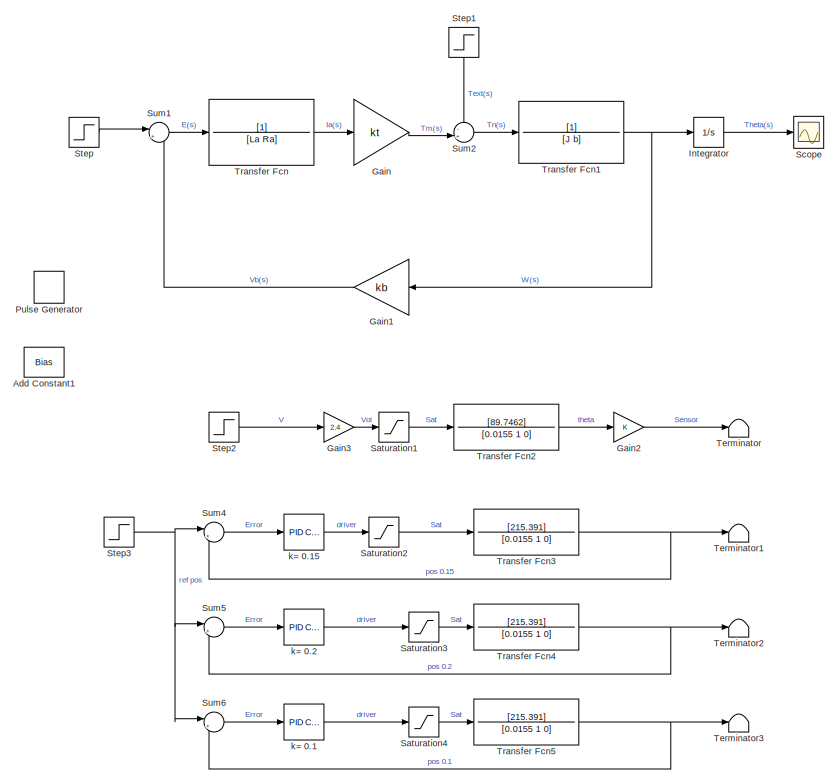
[diagram: root canvas - part 1/2, top left region]
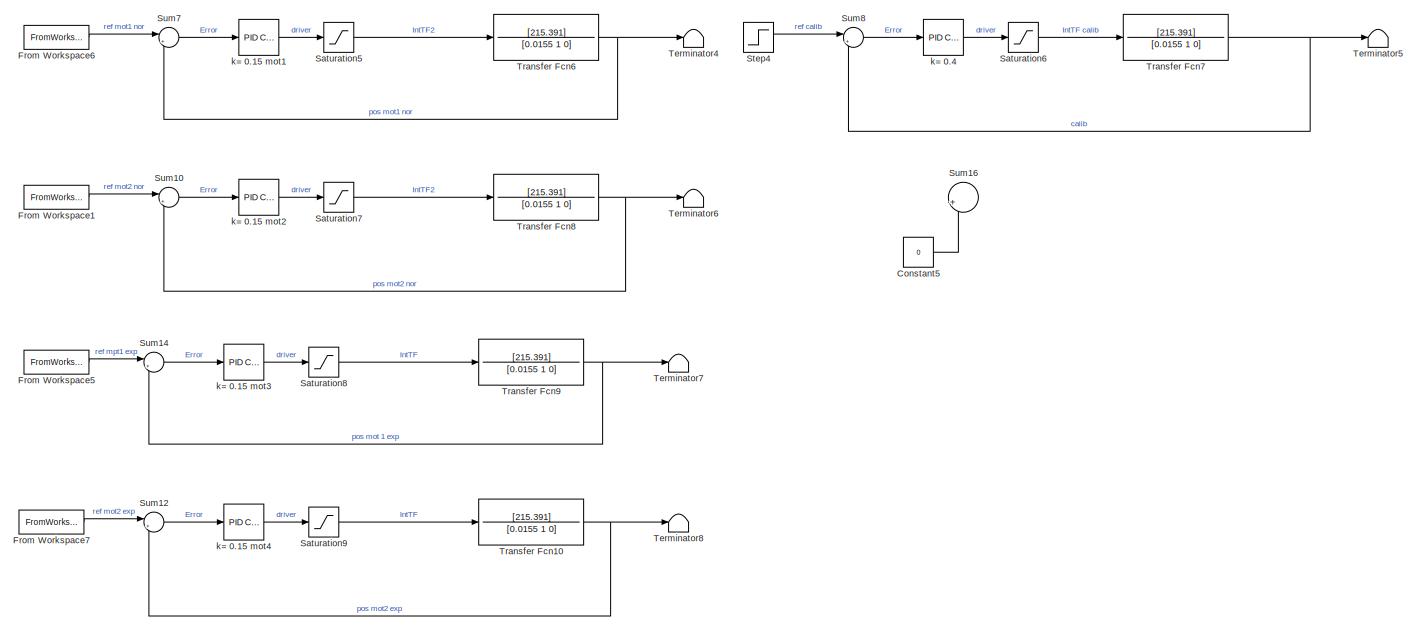
[diagram: root canvas - part 2/2, full width, bottom band]
MODEL slx_a21ca1949659
KIND model
CONFIG AbsTol = auto
CONFIG EnableMultiTasking = off
CONFIG FixedStep = auto
CONFIG MaxStep = auto
CONFIG MinStep = auto
CONFIG RelTol = 1e-3
CONFIG SampleTimeConstraint = Unconstrained
CONFIG SolverName = VariableStepAuto
CONFIG StartTime = 0.0
CONFIG StopTime = 11.5
BLOCK [Bias] Add Constant1
  Bias = -10
  Commented = on
  SaturateOnIntegerOverflow = off
BLOCK [Constant] Constant5
  Commented = on
  Value = 0
BLOCK [FromWorkspace] From Workspace1
  Commented = on
  OutputAfterFinalValue = Setting to zero
  VariableName = Treb_norm2
BLOCK [FromWorkspace] From Workspace5
  Commented = on
  OutputAfterFinalValue = Setting to zero
  VariableName = Treb_expa1
BLOCK [FromWorkspace] From Workspace6
  OutputAfterFinalValue = Setting to zero
  VariableName = Treb_norm1
BLOCK [FromWorkspace] From Workspace7
  Commented = on
  OutputAfterFinalValue = Setting to zero
  VariableName = Treb_expa2
BLOCK [Gain] Gain
  Commented = on
  Gain = kt
BLOCK [Gain] Gain1
  Commented = on
  Gain = kb
  NameLocation = top
BLOCK [Gain] Gain2
BLOCK [Gain] Gain3
  Gain = 2.4
BLOCK [Integrator] Integrator
  Commented = on
  Ports = [1, 1]
BLOCK [DiscretePulseGenerator] Pulse Generator
  Amplitude = 40
  Commented = on
  Period = 0.6
  Ports = [0, 1]
  PulseType = Time based
  PulseWidth = 50
BLOCK [Saturate] Saturation1
  LowerLimit = 0
  UpperLimit = 12
BLOCK [Saturate] Saturation2
  Commented = on
  LowerLimit = -5
  UpperLimit = 5
BLOCK [Saturate] Saturation3
  Commented = on
  LowerLimit = -5
  UpperLimit = 5
BLOCK [Saturate] Saturation4
  Commented = on
  LowerLimit = -5
  UpperLimit = 5
BLOCK [Saturate] Saturation5
  LowerLimit = -5
  UpperLimit = 5
BLOCK [Saturate] Saturation6
  Commented = on
  LowerLimit = -5
  UpperLimit = 5
BLOCK [Saturate] Saturation7
  Commented = on
  LowerLimit = -5
  UpperLimit = 5
BLOCK [Saturate] Saturation8
  Commented = on
  LowerLimit = -5
  UpperLimit = 5
BLOCK [Saturate] Saturation9
  Commented = on
  LowerLimit = -5
  UpperLimit = 5
BLOCK [Scope] Scope
  Commented = on
  Floating = off
  NumInputPorts = 1
  Ports = [1]
  ScopeSpecificationString = Simulink.scopes.TimeScopeBlockCfg('CurrentConfiguration', extmgr.ConfigurationSet(extmgr.Configuration('Core','General UI',true),extmgr.Configuration('Core','Source UI',true),extmgr.Configuration('Sources','WiredSimulink',true),extmgr.Configuration('Visuals','Time Domain',true,'SerializedDisplays',{struct('MinYLimReal','-65.22706','MaxYLimReal','587.04358','YLabelReal','','MinYLimMag','0.00000','M...<+1370ch>
BLOCK [Step] Step
  After = 12
  Commented = on
  SampleTime = 0
  Time = 0
BLOCK [Step] Step1
  After = 0
  Commented = on
  NameLocation = left
  SampleTime = 0
  Time = 0
BLOCK [Step] Step2
  After = 5
  SampleTime = 0
  Time = 0
BLOCK [Step] Step3
  After = 1.57
  Commented = on
  SampleTime = 0
  Time = 0
BLOCK [Step] Step4
  After = 0.7854
  Commented = on
  SampleTime = 0
  Time = 0
BLOCK [Sum] Sum1
  Commented = on
  Inputs = |+-
  Ports = [2, 1]
BLOCK [Sum] Sum10
  Commented = on
  Inputs = |+-
  Ports = [2, 1]
BLOCK [Sum] Sum12
  Commented = on
  Inputs = |+-
  Ports = [2, 1]
BLOCK [Sum] Sum14
  Commented = on
  Inputs = |+-
  Ports = [2, 1]
BLOCK [Sum] Sum16
  Commented = on
  Inputs = |++
  Ports = [2, 1]
BLOCK [Sum] Sum2
  Commented = on
  Inputs = -+|
  Ports = [2, 1]
BLOCK [Sum] Sum4
  Commented = on
  Inputs = |+-
  Ports = [2, 1]
BLOCK [Sum] Sum5
  Commented = on
  Inputs = |+-
  Ports = [2, 1]
BLOCK [Sum] Sum6
  Commented = on
  Inputs = |+-
  Ports = [2, 1]
BLOCK [Sum] Sum7
  Inputs = |+-
  Ports = [2, 1]
BLOCK [Sum] Sum8
  Commented = on
  Inputs = |+-
  Ports = [2, 1]
BLOCK [Terminator] Terminator
BLOCK [Terminator] Terminator1
  Commented = on
BLOCK [Terminator] Terminator2
  Commented = on
BLOCK [Terminator] Terminator3
  Commented = on
BLOCK [Terminator] Terminator4
BLOCK [Terminator] Terminator5
  Commented = on
BLOCK [Terminator] Terminator6
  Commented = on
BLOCK [Terminator] Terminator7
  Commented = on
BLOCK [Terminator] Terminator8
  Commented = on
BLOCK [TransferFcn] Transfer Fcn
  Commented = on
  Denominator = [La Ra]
BLOCK [TransferFcn] Transfer Fcn1
  Commented = on
  Denominator = [J b]
BLOCK [TransferFcn] Transfer Fcn10
  Commented = on
  Denominator = [0.0155 1 0]
  Numerator = [215.391]
BLOCK [TransferFcn] Transfer Fcn2
  Denominator = [0.0155 1 0]
  Numerator = [89.7462]
BLOCK [TransferFcn] Transfer Fcn3
  Commented = on
  Denominator = [0.0155 1 0]
  Numerator = [215.391]
BLOCK [TransferFcn] Transfer Fcn4
  Commented = on
  Denominator = [0.0155 1 0]
  Numerator = [215.391]
BLOCK [TransferFcn] Transfer Fcn5
  Commented = on
  Denominator = [0.0155 1 0]
  Numerator = [215.391]
BLOCK [TransferFcn] Transfer Fcn6
  Denominator = [0.0155 1 0]
  Numerator = [215.391]
BLOCK [TransferFcn] Transfer Fcn7
  Commented = on
  Denominator = [0.0155 1 0]
  Numerator = [215.391]
BLOCK [TransferFcn] Transfer Fcn8
  Commented = on
  Denominator = [0.0155 1 0]
  Numerator = [215.391]
BLOCK [TransferFcn] Transfer Fcn9
  Commented = on
  Denominator = [0.0155 1 0]
  Numerator = [215.391]
BLOCK [Reference] k= 0.1  REF=pid_lib/PID Controller
  Commented = on
  Ports = [1, 1]
  SourceBlock = pid_lib/PID Controller
  SourceProductBaseCode = SL
  SourceType = PID 1dof
BLOCK [Reference] k= 0.15  REF=pid_lib/PID Controller
  Commented = on
  Ports = [1, 1]
  SourceBlock = pid_lib/PID Controller
  SourceProductBaseCode = SL
  SourceType = PID 1dof
BLOCK [Reference] k= 0.15 mot1  REF=pid_lib/PID Controller
  Ports = [1, 1]
  SourceBlock = pid_lib/PID Controller
  SourceProductBaseCode = SL
  SourceType = PID 1dof
BLOCK [Reference] k= 0.15 mot2  REF=pid_lib/PID Controller
  Commented = on
  Ports = [1, 1]
  SourceBlock = pid_lib/PID Controller
  SourceProductBaseCode = SL
  SourceType = PID 1dof
BLOCK [Reference] k= 0.15 mot3  REF=pid_lib/PID Controller
  Commented = on
  Ports = [1, 1]
  SourceBlock = pid_lib/PID Controller
  SourceProductBaseCode = SL
  SourceType = PID 1dof
BLOCK [Reference] k= 0.15 mot4  REF=pid_lib/PID Controller
  Commented = on
  Ports = [1, 1]
  SourceBlock = pid_lib/PID Controller
  SourceProductBaseCode = SL
  SourceType = PID 1dof
BLOCK [Reference] k= 0.2  REF=pid_lib/PID Controller
  Commented = on
  Ports = [1, 1]
  SourceBlock = pid_lib/PID Controller
  SourceProductBaseCode = SL
  SourceType = PID 1dof
BLOCK [Reference] k= 0.4  REF=pid_lib/PID Controller
  Commented = on
  Ports = [1, 1]
  SourceBlock = pid_lib/PID Controller
  SourceProductBaseCode = SL
  SourceType = PID 1dof
LINE Constant5:1 -> Sum16:2
LINE From Workspace1:1 -> Sum10:1
LINE From Workspace5:1 -> Sum14:1
LINE From Workspace6:1 -> Sum7:1
LINE From Workspace7:1 -> Sum12:1
LINE Gain1:1 -> Sum1:2
LINE Gain2:1 -> Terminator:1
LINE Gain3:1 -> Saturation1:1
LINE Gain:1 -> Sum2:2
LINE Integrator:1 -> Scope:1
LINE Saturation1:1 -> Transfer Fcn2:1
LINE Saturation2:1 -> Transfer Fcn3:1
LINE Saturation3:1 -> Transfer Fcn4:1
LINE Saturation4:1 -> Transfer Fcn5:1
LINE Saturation5:1 -> Transfer Fcn6:1
LINE Saturation6:1 -> Transfer Fcn7:1
LINE Saturation7:1 -> Transfer Fcn8:1
LINE Saturation8:1 -> Transfer Fcn9:1
LINE Saturation9:1 -> Transfer Fcn10:1
LINE Step1:1 -> Sum2:1
LINE Step2:1 -> Gain3:1
NET Step3:1 -> Sum4:1, Sum5:1, Sum6:1
LINE Step4:1 -> Sum8:1
LINE Step:1 -> Sum1:1
LINE Sum10:1 -> k= 0.15 mot2:1
LINE Sum12:1 -> k= 0.15 mot4:1
LINE Sum14:1 -> k= 0.15 mot3:1
LINE Sum1:1 -> Transfer Fcn:1
LINE Sum2:1 -> Transfer Fcn1:1
LINE Sum4:1 -> k= 0.15:1
LINE Sum5:1 -> k= 0.2:1
LINE Sum6:1 -> k= 0.1:1
LINE Sum7:1 -> k= 0.15 mot1:1
LINE Sum8:1 -> k= 0.4:1
NET Transfer Fcn10:1 -> Sum12:2, Terminator8:1
NET Transfer Fcn1:1 -> Gain1:1, Integrator:1
LINE Transfer Fcn2:1 -> Gain2:1
NET Transfer Fcn3:1 -> Sum4:2, Terminator1:1
NET Transfer Fcn4:1 -> Sum5:2, Terminator2:1
NET Transfer Fcn5:1 -> Sum6:2, Terminator3:1
NET Transfer Fcn6:1 -> Sum7:2, Terminator4:1
NET Transfer Fcn7:1 -> Sum8:2, Terminator5:1
NET Transfer Fcn8:1 -> Sum10:2, Terminator6:1
NET Transfer Fcn9:1 -> Sum14:2, Terminator7:1
LINE Transfer Fcn:1 -> Gain:1
LINE k= 0.15 mot1:1 -> Saturation5:1
LINE k= 0.15 mot2:1 -> Saturation7:1
LINE k= 0.15 mot3:1 -> Saturation8:1
LINE k= 0.15 mot4:1 -> Saturation9:1
LINE k= 0.15:1 -> Saturation2:1
LINE k= 0.1:1 -> Saturation4:1
LINE k= 0.2:1 -> Saturation3:1
LINE k= 0.4:1 -> Saturation6:1
note: NET lines group one-source signal fan-out (src -> all destinations, sorted); 1:1 wires keep LINE
